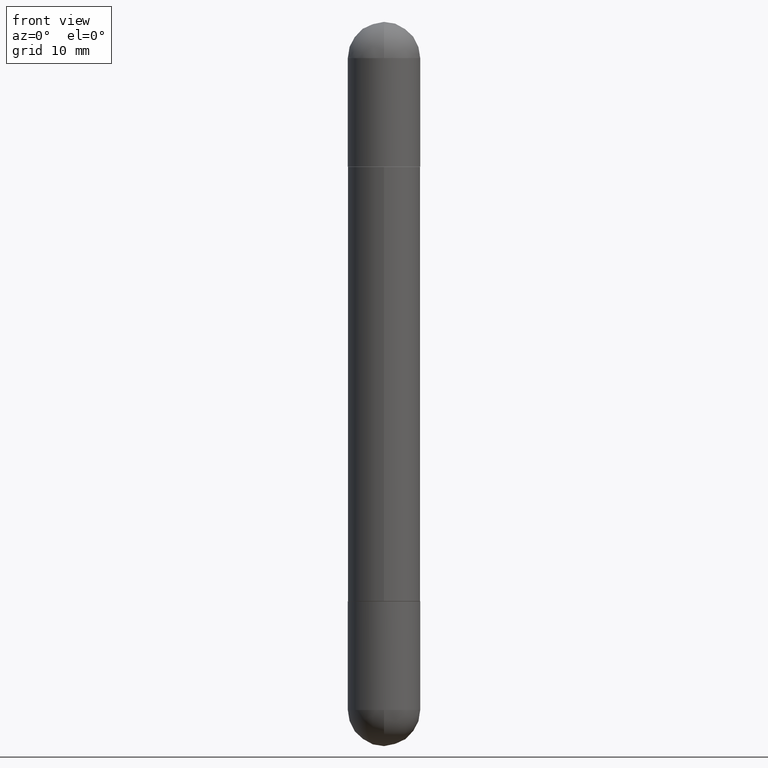
[diagram: clean part render]
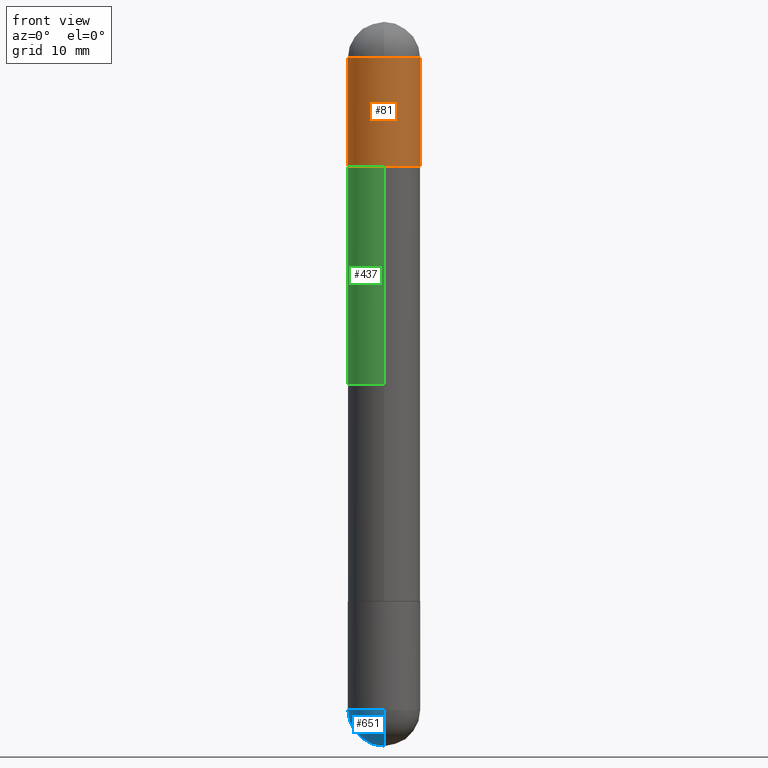
[diagram: same view with three faces highlighted in distinct colors, each labeled with its STEP entity id]
A machine part, front view with three faces highlighted in distinct colors.
Their STEP definitions:

[orange] entity #81 — the highlighted cylindrical surface (edge-blend (fillet) strip) has radius 3.175 mm, axis along (-0, 0, -1).
#5 = DIRECTION ( 'NONE',  ( 2.445468806185136597E-29, -3.491481338843145583E-15, 1.000000000000000000 ) ) ;
#19 = CARTESIAN_POINT ( 'NONE',  ( -0.1250000000000000000, 8.575622497214414453E-16, -2.500000000000000444 ) ) ;
#33 = AXIS2_PLACEMENT_3D ( 'NONE', #62, #442, #691 ) ;
#58 = CARTESIAN_POINT ( 'NONE',  ( 0.1250000000000000000, -8.728703347107833388E-16, -2.500000000000000444 ) ) ;
#62 = CARTESIAN_POINT ( 'NONE',  ( 5.807988414689700538E-29, -8.292268179752471696E-15, -0.1250000000000004441 ) ) ;
#68 = CARTESIAN_POINT ( 'NONE',  ( -8.575622497213856334E-16, -0.1250000000000086320, -0.1250000000000008882 ) ) ;
#77 = DIRECTION ( 'NONE',  ( 1.000000000000000000, -6.982962677686270655E-15, 0.000000000000000000 ) ) ;
#81 = ADVANCED_FACE ( 'NONE', ( #555 ), #810, .T. ) ;
#96 = EDGE_CURVE ( 'NONE', #615, #413, #254, .T. ) ;
#101 = ORIENTED_EDGE ( 'NONE', *, *, #337, .T. ) ;
#123 = DIRECTION ( 'NONE',  ( -2.445468806185136877E-29, 3.491481338843145188E-15, -1.000000000000000000 ) ) ;
#181 = VERTEX_POINT ( 'NONE', #501 ) ;
#186 = DIRECTION ( 'NONE',  ( 1.000000000000000000, -6.982962677686266711E-15, 0.000000000000000000 ) ) ;
#189 = EDGE_CURVE ( 'NONE', #600, #615, #416, .T. ) ;
#222 = CARTESIAN_POINT ( 'NONE',  ( -0.1250000000000000000, -6.780053178997939591E-15, -0.5000000000000006661 ) ) ;
#245 = ORIENTED_EDGE ( 'NONE', *, *, #652, .F. ) ;
#254 = LINE ( 'NONE', #58, #338 ) ;
#274 = LINE ( 'NONE', #19, #470 ) ;
#287 = ORIENTED_EDGE ( 'NONE', *, *, #189, .F. ) ;
#337 = EDGE_CURVE ( 'NONE', #181, #740, #274, .T. ) ;
#338 = VECTOR ( 'NONE', #123, 39.37007874015748143 ) ;
#363 = AXIS2_PLACEMENT_3D ( 'NONE', #613, #687, #186 ) ;
#364 = AXIS2_PLACEMENT_3D ( 'NONE', #567, #5, #763 ) ;
#400 = DIRECTION ( 'NONE',  ( 2.445468806185136597E-29, -3.491481338843145583E-15, 1.000000000000000000 ) ) ;
#413 = VERTEX_POINT ( 'NONE', #704 ) ;
#416 = CIRCLE ( 'NONE', #33, 0.1250000000000000000 ) ;
#442 = DIRECTION ( 'NONE',  ( 2.445468806185136597E-29, -3.491481338843145583E-15, 1.000000000000000000 ) ) ;
#443 = CARTESIAN_POINT ( 'NONE',  ( 0.1250000000000000000, -8.510485763430165164E-15, -0.1250000000000004441 ) ) ;
#470 = VECTOR ( 'NONE', #642, 39.37007874015748143 ) ;
#501 = CARTESIAN_POINT ( 'NONE',  ( -0.1250000000000000000, -6.780053178997941168E-15, -0.1250000000000004441 ) ) ;
#549 = CIRCLE ( 'NONE', #786, 0.1250000000000000000 ) ;
#555 = FACE_OUTER_BOUND ( 'NONE', #638, .T. ) ;
#567 = CARTESIAN_POINT ( 'NONE',  ( 5.807988414689700538E-29, -8.292268179752471696E-15, -0.1250000000000004441 ) ) ;
#581 = ORIENTED_EDGE ( 'NONE', *, *, #706, .T. ) ;
#600 = VERTEX_POINT ( 'NONE', #68 ) ;
#613 = CARTESIAN_POINT ( 'NONE',  ( 0.000000000000000000, 0.000000000000000000, -2.500000000000000444 ) ) ;
#615 = VERTEX_POINT ( 'NONE', #443 ) ;
#638 = EDGE_LOOP ( 'NONE', ( #245, #101, #581, #806, #287 ) ) ;
#642 = DIRECTION ( 'NONE',  ( -2.445468806185136877E-29, 3.491481338843145188E-15, -1.000000000000000000 ) ) ;
#652 = EDGE_CURVE ( 'NONE', #181, #600, #721, .T. ) ;
#687 = DIRECTION ( 'NONE',  ( -2.445468806185136597E-29, 3.491481338843145583E-15, -1.000000000000000000 ) ) ;
#691 = DIRECTION ( 'NONE',  ( 1.000000000000000000, -6.982962677686270655E-15, 0.000000000000000000 ) ) ;
#704 = CARTESIAN_POINT ( 'NONE',  ( 0.1250000000000000000, -7.855833012397075293E-15, -0.5000000000000006661 ) ) ;
#706 = EDGE_CURVE ( 'NONE', #740, #413, #549, .T. ) ;
#721 = CIRCLE ( 'NONE', #364, 0.1250000000000000000 ) ;
#740 = VERTEX_POINT ( 'NONE', #222 ) ;
#763 = DIRECTION ( 'NONE',  ( 1.000000000000000000, -6.982962677686270655E-15, 0.000000000000000000 ) ) ;
#782 = CARTESIAN_POINT ( 'NONE',  ( 4.890937612370273194E-29, -6.982962677686291165E-15, -0.5000000000000006661 ) ) ;
#786 = AXIS2_PLACEMENT_3D ( 'NONE', #782, #400, #77 ) ;
#806 = ORIENTED_EDGE ( 'NONE', *, *, #96, .F. ) ;
#810 = CYLINDRICAL_SURFACE ( 'NONE', #363, 0.1250000000000000000 ) ;

[blue] entity #651 — the highlighted spherical surface has radius 3.175 mm.
#1 = CARTESIAN_POINT ( 'NONE',  ( -8.881784197000694204E-16, -0.1250000000000086320, -2.374999999999999556 ) ) ;
#37 = VERTEX_POINT ( 'NONE', #1 ) ;
#49 = AXIS2_PLACEMENT_3D ( 'NONE', #207, #447, #685 ) ;
#71 = CARTESIAN_POINT ( 'NONE',  ( 5.476868636775814291E-29, -8.766450547892521992E-15, -2.375000000000000000 ) ) ;
#76 = CARTESIAN_POINT ( 'NONE',  ( 5.476868636775814291E-29, -8.766450547892521992E-15, -2.375000000000000000 ) ) ;
#105 = EDGE_LOOP ( 'NONE', ( #175, #188, #462, #373 ) ) ;
#124 = EDGE_CURVE ( 'NONE', #385, #198, #135, .T. ) ;
#125 = SPHERICAL_SURFACE ( 'NONE', #605, 0.1250000000000001943 ) ;
#135 = CIRCLE ( 'NONE', #796, 0.1250000000000000000 ) ;
#141 = CARTESIAN_POINT ( 'NONE',  ( 8.728703347108403340E-16, 0.1249999999999915623, -2.375000000000000888 ) ) ;
#172 = VERTEX_POINT ( 'NONE', #200 ) ;
#175 = ORIENTED_EDGE ( 'NONE', *, *, #273, .F. ) ;
#188 = ORIENTED_EDGE ( 'NONE', *, *, #767, .T. ) ;
#193 = CIRCLE ( 'NONE', #732, 0.1250000000000001943 ) ;
#198 = VERTEX_POINT ( 'NONE', #213 ) ;
#200 = CARTESIAN_POINT ( 'NONE',  ( 5.787897026856327965E-29, -9.195231672753244292E-15, -2.500000000000000444 ) ) ;
#207 = CARTESIAN_POINT ( 'NONE',  ( 5.807988414689700538E-29, -8.292268179752471696E-15, -2.375000000000000000 ) ) ;
#213 = CARTESIAN_POINT ( 'NONE',  ( -0.1250000000000000000, -6.749437009019256592E-15, -2.375000000000000000 ) ) ;
#267 = CIRCLE ( 'NONE', #351, 0.1250000000000001943 ) ;
#273 = EDGE_CURVE ( 'NONE', #172, #385, #193, .T. ) ;
#280 = DIRECTION ( 'NONE',  ( -7.105427357601000281E-15, -1.000000000000000000, 0.000000000000000000 ) ) ;
#319 = DIRECTION ( 'NONE',  ( -2.445468806185136597E-29, 3.491481338843145583E-15, 1.000000000000000000 ) ) ;
#323 = DIRECTION ( 'NONE',  ( -1.000000000000000000, 6.982962677686265922E-15, -4.883557194083112901E-29 ) ) ;
#328 = DIRECTION ( 'NONE',  ( 1.000000000000000000, -6.982962677686265922E-15, 4.883557194083112340E-29 ) ) ;
#351 = AXIS2_PLACEMENT_3D ( 'NONE', #458, #710, #280 ) ;
#372 = DIRECTION ( 'NONE',  ( 6.982962677686265922E-15, 1.000000000000000000, -4.370956789862814839E-15 ) ) ;
#373 = ORIENTED_EDGE ( 'NONE', *, *, #124, .F. ) ;
#385 = VERTEX_POINT ( 'NONE', #141 ) ;
#406 = CIRCLE ( 'NONE', #49, 0.1250000000000000000 ) ;
#424 = DIRECTION ( 'NONE',  ( 1.000000000000000000, -6.982962677686270655E-15, 0.000000000000000000 ) ) ;
#447 = DIRECTION ( 'NONE',  ( -2.445468806185136597E-29, 3.491481338843145583E-15, 1.000000000000000000 ) ) ;
#458 = CARTESIAN_POINT ( 'NONE',  ( 5.476868636775814291E-29, -8.766450547892521992E-15, -2.375000000000000000 ) ) ;
#462 = ORIENTED_EDGE ( 'NONE', *, *, #609, .F. ) ;
#490 = CARTESIAN_POINT ( 'NONE',  ( 5.807988414689700538E-29, -8.292268179752471696E-15, -2.375000000000000000 ) ) ;
#605 = AXIS2_PLACEMENT_3D ( 'NONE', #71, #323, #372 ) ;
#609 = EDGE_CURVE ( 'NONE', #198, #37, #406, .T. ) ;
#627 = FACE_OUTER_BOUND ( 'NONE', #105, .T. ) ;
#651 = ADVANCED_FACE ( 'NONE', ( #627 ), #125, .T. ) ;
#685 = DIRECTION ( 'NONE',  ( 1.000000000000000000, -6.982962677686270655E-15, 0.000000000000000000 ) ) ;
#710 = DIRECTION ( 'NONE',  ( -1.000000000000000000, 7.105427357601001070E-15, -4.926315508542082329E-29 ) ) ;
#732 = AXIS2_PLACEMENT_3D ( 'NONE', #76, #328, #771 ) ;
#767 = EDGE_CURVE ( 'NONE', #172, #37, #267, .T. ) ;
#771 = DIRECTION ( 'NONE',  ( 6.982962677686265133E-15, 1.000000000000000000, 0.000000000000000000 ) ) ;
#796 = AXIS2_PLACEMENT_3D ( 'NONE', #490, #319, #424 ) ;

[green] entity #437 — the highlighted cylindrical surface (edge-blend (fillet) strip) has radius 3.175 mm, axis along (-0, 0, -1).
#15 = DIRECTION ( 'NONE',  ( -0.000000000000000000, -0.000000000000000000, -1.000000000000000000 ) ) ;
#16 = CARTESIAN_POINT ( 'NONE',  ( 0.000000000000000000, 0.000000000000000000, -2.500000000000000444 ) ) ;
#25 = ORIENTED_EDGE ( 'NONE', *, *, #318, .F. ) ;
#59 = CARTESIAN_POINT ( 'NONE',  ( 4.889782855311978936E-29, -6.977622823661715081E-15, -0.5010000000000010001 ) ) ;
#61 = CARTESIAN_POINT ( 'NONE',  ( -8.728703347107364016E-16, -0.1250000000000072720, -0.5010000000000014442 ) ) ;
#100 = ORIENTED_EDGE ( 'NONE', *, *, #474, .T. ) ;
#103 = CIRCLE ( 'NONE', #136, 0.1250000000000001388 ) ;
#112 = DIRECTION ( 'NONE',  ( -2.446114484898439135E-29, 3.490556690175946618E-15, -1.000000000000000000 ) ) ;
#136 = AXIS2_PLACEMENT_3D ( 'NONE', #401, #15, #327 ) ;
#143 = DIRECTION ( 'NONE',  ( -6.982962677686265922E-15, -1.000000000000000000, -3.278217592397108762E-15 ) ) ;
#150 = AXIS2_PLACEMENT_3D ( 'NONE', #16, #275, #522 ) ;
#232 = VERTEX_POINT ( 'NONE', #707 ) ;
#275 = DIRECTION ( 'NONE',  ( -2.446114484898439135E-29, 3.490556690175946223E-15, -1.000000000000000000 ) ) ;
#278 = VECTOR ( 'NONE', #112, 39.37007874015748143 ) ;
#318 = EDGE_CURVE ( 'NONE', #537, #408, #103, .T. ) ;
#327 = DIRECTION ( 'NONE',  ( -1.000000000000000000, 0.000000000000000000, 0.000000000000000000 ) ) ;
#331 = FACE_OUTER_BOUND ( 'NONE', #467, .T. ) ;
#358 = CARTESIAN_POINT ( 'NONE',  ( -8.728703347107444874E-16, -0.1250000000000044964, -1.250000000000000222 ) ) ;
#377 = LINE ( 'NONE', #387, #621 ) ;
#387 = CARTESIAN_POINT ( 'NONE',  ( -8.728703347107842263E-16, -0.1250000000000001388, -2.500000000000001332 ) ) ;
#401 = CARTESIAN_POINT ( 'NONE',  ( 3.057643106123049759E-29, -4.363195862719933568E-15, -1.250000000000000222 ) ) ;
#408 = VERTEX_POINT ( 'NONE', #453 ) ;
#432 = CARTESIAN_POINT ( 'NONE',  ( 8.575622497214423328E-16, 0.1250000000000001388, -2.500000000000000000 ) ) ;
#437 = ADVANCED_FACE ( 'NONE', ( #331 ), #709, .T. ) ;
#438 = DIRECTION ( 'NONE',  ( 2.446114484898439135E-29, -3.490556690175946223E-15, 1.000000000000000000 ) ) ;
#453 = CARTESIAN_POINT ( 'NONE',  ( 8.575622497214909463E-16, 0.1249999999999957673, -1.250000000000000222 ) ) ;
#467 = EDGE_LOOP ( 'NONE', ( #601, #100, #25, #606 ) ) ;
#474 = EDGE_CURVE ( 'NONE', #232, #408, #690, .T. ) ;
#499 = DIRECTION ( 'NONE',  ( -2.446114484898439135E-29, 3.490556690175946618E-15, -1.000000000000000000 ) ) ;
#522 = DIRECTION ( 'NONE',  ( -6.982962677686265922E-15, -1.000000000000000000, -4.370956789862816416E-15 ) ) ;
#537 = VERTEX_POINT ( 'NONE', #358 ) ;
#539 = VERTEX_POINT ( 'NONE', #61 ) ;
#561 = CIRCLE ( 'NONE', #607, 0.1250000000000002776 ) ;
#574 = EDGE_CURVE ( 'NONE', #539, #537, #377, .T. ) ;
#601 = ORIENTED_EDGE ( 'NONE', *, *, #674, .F. ) ;
#606 = ORIENTED_EDGE ( 'NONE', *, *, #574, .F. ) ;
#607 = AXIS2_PLACEMENT_3D ( 'NONE', #59, #438, #143 ) ;
#621 = VECTOR ( 'NONE', #499, 39.37007874015748143 ) ;
#674 = EDGE_CURVE ( 'NONE', #232, #539, #561, .T. ) ;
#690 = LINE ( 'NONE', #432, #278 ) ;
#707 = CARTESIAN_POINT ( 'NONE',  ( 8.575622497214919324E-16, 0.1249999999999932693, -0.5010000000000006670 ) ) ;
#709 = CYLINDRICAL_SURFACE ( 'NONE', #150, 0.1250000000000001388 ) ;